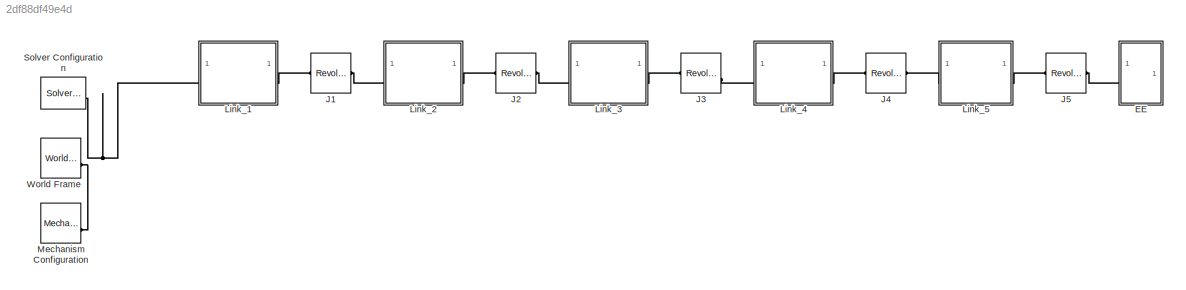
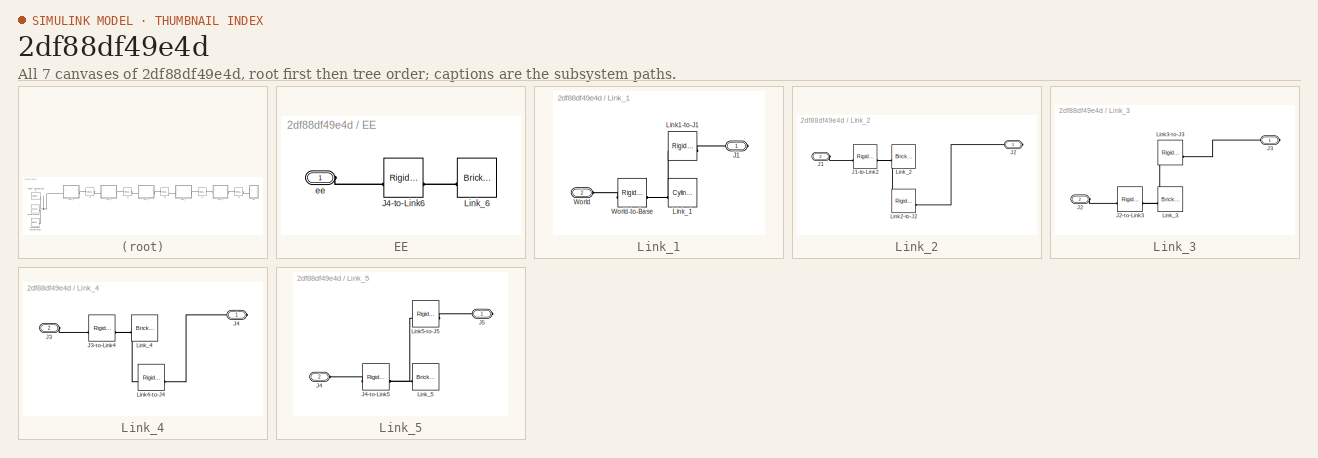
[diagram: thumbnail index - all 7 canvases of the model, root first then tree order]
MODEL slx_2df88df49e4d
KIND model
CONFIG AbsTol = auto
CONFIG EnableMultiTasking = off
CONFIG FixedStep = auto
CONFIG MaxStep = auto
CONFIG MinStep = auto
CONFIG RelTol = 1e-3
CONFIG SampleTimeConstraint = Unconstrained
CONFIG SolverName = VariableStepAuto
CONFIG StartTime = 0.0
CONFIG StopTime = 10.0
BLOCK [SubSystem] EE
BLOCK [Reference] EE/J4-to-Link6  REF=sm_lib/Frames and
Transforms/Rigid
Transform
  SourceBlock = sm_lib/Frames and\nTransforms/Rigid\nTransform
  SourceType = Rigid\nTransform
BLOCK [Reference] EE/Link_6  REF=sm_lib/Body Elements/Brick Solid
  SourceBlock = sm_lib/Body Elements/Brick Solid
  SourceType = Brick Solid
BLOCK [PMIOPort] EE/ee
  Side = Left
BLOCK [Reference] J1  REF=sm_lib/Joints/Revolute Joint
  SourceBlock = sm_lib/Joints/Revolute Joint
  SourceType = Revolute Joint
BLOCK [Reference] J2  REF=sm_lib/Joints/Revolute Joint
  SourceBlock = sm_lib/Joints/Revolute Joint
  SourceType = Revolute Joint
BLOCK [Reference] J3  REF=sm_lib/Joints/Revolute Joint
  SourceBlock = sm_lib/Joints/Revolute Joint
  SourceType = Revolute Joint
BLOCK [Reference] J4  REF=sm_lib/Joints/Revolute Joint
  SourceBlock = sm_lib/Joints/Revolute Joint
  SourceType = Revolute Joint
BLOCK [Reference] J5  REF=sm_lib/Joints/Revolute Joint
  SourceBlock = sm_lib/Joints/Revolute Joint
  SourceType = Revolute Joint
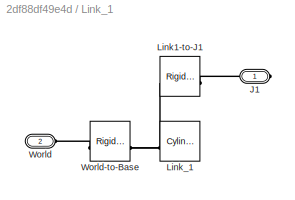
BLOCK [SubSystem] Link_1
BLOCK [PMIOPort] Link_1/J1
  Side = Right
BLOCK [Reference] Link_1/Link1-to-J1  REF=sm_lib/Frames and
Transforms/Rigid
Transform
  SourceBlock = sm_lib/Frames and\nTransforms/Rigid\nTransform
  SourceType = Rigid\nTransform
BLOCK [Reference] Link_1/Link_1  REF=sm_lib/Body Elements/Cylindrical Solid
  SourceBlock = sm_lib/Body Elements/Cylindrical Solid
  SourceType = Cylindrical Solid
BLOCK [PMIOPort] Link_1/World
  Port = 2
  Side = Left
BLOCK [Reference] Link_1/World-to-Base  REF=sm_lib/Frames and
Transforms/Rigid
Transform
  SourceBlock = sm_lib/Frames and\nTransforms/Rigid\nTransform
  SourceType = Rigid\nTransform
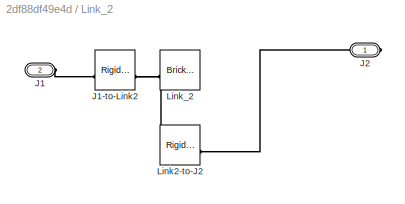
BLOCK [SubSystem] Link_2
BLOCK [PMIOPort] Link_2/J1
  Port = 2
  Side = Left
BLOCK [Reference] Link_2/J1-to-Link2  REF=sm_lib/Frames and
Transforms/Rigid
Transform
  SourceBlock = sm_lib/Frames and\nTransforms/Rigid\nTransform
  SourceType = Rigid\nTransform
BLOCK [PMIOPort] Link_2/J2
  Side = Right
BLOCK [Reference] Link_2/Link2-to-J2  REF=sm_lib/Frames and
Transforms/Rigid
Transform
  SourceBlock = sm_lib/Frames and\nTransforms/Rigid\nTransform
  SourceType = Rigid\nTransform
BLOCK [Reference] Link_2/Link_2  REF=sm_lib/Body Elements/Brick Solid
  SourceBlock = sm_lib/Body Elements/Brick Solid
  SourceType = Brick Solid
BLOCK [SubSystem] Link_3
BLOCK [PMIOPort] Link_3/J2
  Port = 2
  Side = Left
BLOCK [Reference] Link_3/J2-to-Link3  REF=sm_lib/Frames and
Transforms/Rigid
Transform
  SourceBlock = sm_lib/Frames and\nTransforms/Rigid\nTransform
  SourceType = Rigid\nTransform
BLOCK [PMIOPort] Link_3/J3
  Side = Right
BLOCK [Reference] Link_3/Link3-to-J3  REF=sm_lib/Frames and
Transforms/Rigid
Transform
  SourceBlock = sm_lib/Frames and\nTransforms/Rigid\nTransform
  SourceType = Rigid\nTransform
BLOCK [Reference] Link_3/Link_3  REF=sm_lib/Body Elements/Brick Solid
  SourceBlock = sm_lib/Body Elements/Brick Solid
  SourceType = Brick Solid
BLOCK [SubSystem] Link_4
BLOCK [PMIOPort] Link_4/J3
  Port = 2
  Side = Left
BLOCK [Reference] Link_4/J3-to-Link4  REF=sm_lib/Frames and
Transforms/Rigid
Transform
  SourceBlock = sm_lib/Frames and\nTransforms/Rigid\nTransform
  SourceType = Rigid\nTransform
BLOCK [PMIOPort] Link_4/J4
  Side = Right
BLOCK [Reference] Link_4/Link4-to-J4  REF=sm_lib/Frames and
Transforms/Rigid
Transform
  SourceBlock = sm_lib/Frames and\nTransforms/Rigid\nTransform
  SourceType = Rigid\nTransform
BLOCK [Reference] Link_4/Link_4  REF=sm_lib/Body Elements/Brick Solid
  SourceBlock = sm_lib/Body Elements/Brick Solid
  SourceType = Brick Solid
BLOCK [SubSystem] Link_5
BLOCK [PMIOPort] Link_5/J4
  Port = 2
  Side = Left
BLOCK [Reference] Link_5/J4-to-Link5  REF=sm_lib/Frames and
Transforms/Rigid
Transform
  SourceBlock = sm_lib/Frames and\nTransforms/Rigid\nTransform
  SourceType = Rigid\nTransform
BLOCK [PMIOPort] Link_5/J5
  Side = Right
BLOCK [Reference] Link_5/Link5-to-J5  REF=sm_lib/Frames and
Transforms/Rigid
Transform
  SourceBlock = sm_lib/Frames and\nTransforms/Rigid\nTransform
  SourceType = Rigid\nTransform
BLOCK [Reference] Link_5/Link_5  REF=sm_lib/Body Elements/Brick Solid
  SourceBlock = sm_lib/Body Elements/Brick Solid
  SourceType = Brick Solid
BLOCK [Reference] Mechanism Configuration  REF=sm_lib/Utilities/Mechanism
Configuration
  SourceBlock = sm_lib/Utilities/Mechanism\nConfiguration
  SourceType = Mechanism\nConfiguration
BLOCK [Reference] Solver Configuration  REF=nesl_utility/Solver
Configuration
  SourceBlock = nesl_utility/Solver\nConfiguration
  SourceType = Solver\nConfiguration
BLOCK [Reference] World Frame  REF=sm_lib/Frames and
Transforms/World Frame
  SourceBlock = sm_lib/Frames and\nTransforms/World Frame
  SourceType = World Frame
PLINE EE/J4-to-Link6:LConn1 -- EE/ee:RConn1
PLINE EE/J4-to-Link6:RConn1 -- EE/Link_6:RConn1
PLINE EE:LConn1 -- J5:RConn1
PLINE J1:LConn1 -- Link_1:RConn1
PLINE J1:RConn1 -- Link_2:LConn1
PLINE J2:LConn1 -- Link_2:RConn1
PLINE J2:RConn1 -- Link_3:LConn1
PLINE J3:LConn1 -- Link_3:RConn1
PLINE J3:RConn1 -- Link_4:LConn1
PLINE J4:LConn1 -- Link_4:RConn1
PLINE J4:RConn1 -- Link_5:LConn1
PLINE J5:LConn1 -- Link_5:RConn1
PLINE Link_1/J1:RConn1 -- Link_1/Link1-to-J1:RConn1
PNET net1: Link_1/Link1-to-J1:LConn1 -- Link_1/Link_1:RConn1 -- Link_1/World-to-Base:RConn1
PLINE Link_1/World-to-Base:LConn1 -- Link_1/World:RConn1
PNET net2: Link_1:LConn1 -- Mechanism Configuration:RConn1 -- Solver Configuration:RConn1 -- World Frame:RConn1
PLINE Link_2/J1-to-Link2:LConn1 -- Link_2/J1:RConn1
PNET net3: Link_2/J1-to-Link2:RConn1 -- Link_2/Link2-to-J2:LConn1 -- Link_2/Link_2:RConn1
PLINE Link_2/J2:RConn1 -- Link_2/Link2-to-J2:RConn1
PLINE Link_3/J2-to-Link3:LConn1 -- Link_3/J2:RConn1
PNET net4: Link_3/J2-to-Link3:RConn1 -- Link_3/Link3-to-J3:LConn1 -- Link_3/Link_3:RConn1
PLINE Link_3/J3:RConn1 -- Link_3/Link3-to-J3:RConn1
PLINE Link_4/J3-to-Link4:LConn1 -- Link_4/J3:RConn1
PNET net5: Link_4/J3-to-Link4:RConn1 -- Link_4/Link4-to-J4:LConn1 -- Link_4/Link_4:RConn1
PLINE Link_4/J4:RConn1 -- Link_4/Link4-to-J4:RConn1
PLINE Link_5/J4-to-Link5:LConn1 -- Link_5/J4:RConn1
PNET net6: Link_5/J4-to-Link5:RConn1 -- Link_5/Link5-to-J5:LConn1 -- Link_5/Link_5:RConn1
PLINE Link_5/J5:RConn1 -- Link_5/Link5-to-J5:RConn1
note: PNET lines group multi-terminal physical nets as a canonical sorted terminal list (undirected conserving connections); 2-terminal nets keep the pairwise PLINE form
